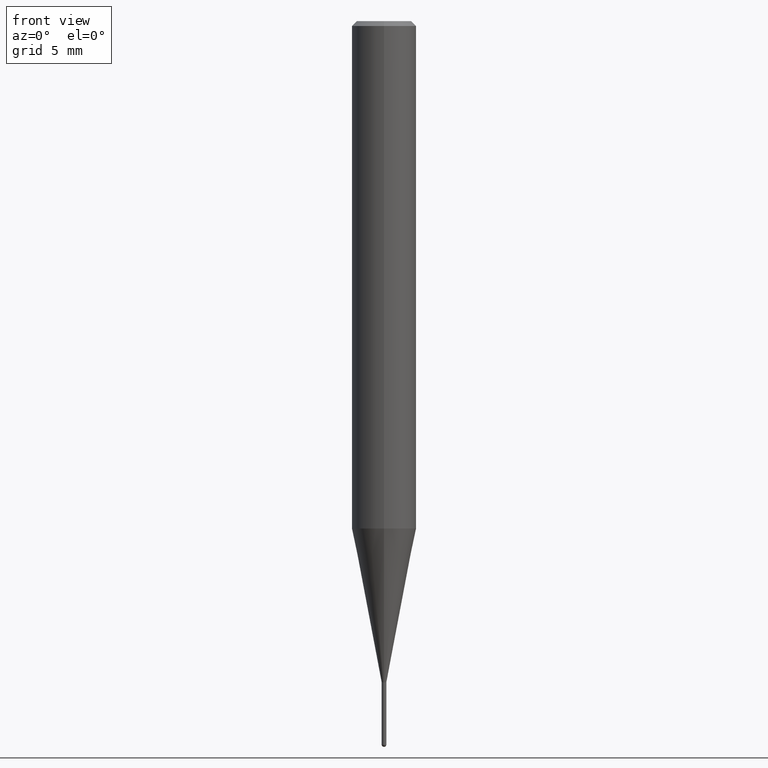
[diagram: clean part render]
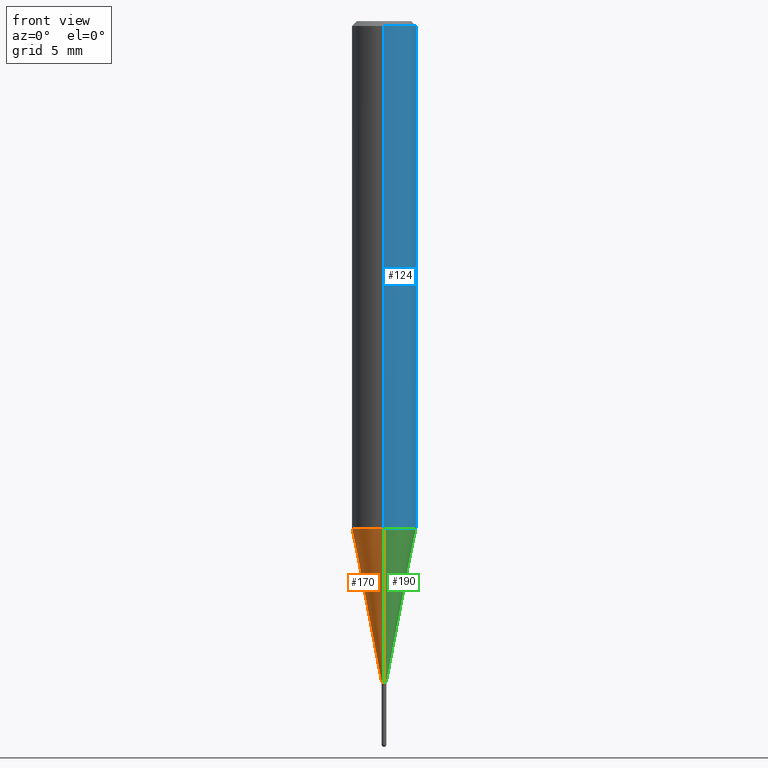
[diagram: same view with three faces highlighted in distinct colors, each labeled with its STEP entity id]
A machine part, front view with three faces highlighted in distinct colors.
Their STEP definitions:

[orange] entity #170 — the highlighted conical surface has half-angle 11 deg.
#94=VERTEX_POINT('',#235);
#126=VERTEX_POINT('',#273);
#132=VERTEX_POINT('',#280);
#136=EDGE_CURVE('',#126,#94,#284,.T.);
#150=EDGE_CURVE('',#186,#132,#298,.T.);
#154=EDGE_CURVE('',#126,#186,#302,.T.);
#170=ADVANCED_FACE('',(#321),#322,.T.);
#186=VERTEX_POINT('',#340);
#214=EDGE_CURVE('',#132,#94,#372,.T.);
#235=CARTESIAN_POINT('',(0.0,0.14495,-41.0));
#273=CARTESIAN_POINT('',(1.77506690986554E-017,-0.14495,-41.0));
#280=CARTESIAN_POINT('',(0.0,1.99995,-31.457));
#284=CIRCLE('',#445,0.14495);
#298=CIRCLE('',#463,1.99995);
#302=LINE('',#470,#471);
#321=FACE_OUTER_BOUND('',#496,.T.);
#322=CONICAL_SURFACE('',#497,1.07245,0.19198911666217);
#340=CARTESIAN_POINT('',(2.44915147732706E-016,-1.99995,-31.457));
#372=LINE('',#556,#557);
#445=AXIS2_PLACEMENT_3D('',#623,#624,#625);
#463=AXIS2_PLACEMENT_3D('',#635,#636,#637);
#470=CARTESIAN_POINT('',(1.31332908415681E-016,-1.07245,-36.2285));
#471=VECTOR('',#639,1.0);
#496=EDGE_LOOP('',(#669,#670,#671,#672));
#497=AXIS2_PLACEMENT_3D('',#673,#674,#675);
#556=CARTESIAN_POINT('',(-1.31332908415681E-016,1.07245,-36.2285));
#557=VECTOR('',#739,1.0);
#623=CARTESIAN_POINT('',(0.0,0.0,-41.0));
#624=DIRECTION('',(0.0,0.0,-1.0));
#625=DIRECTION('',(0.0,1.0,0.0));
#635=CARTESIAN_POINT('',(0.0,0.0,-31.457));
#636=DIRECTION('',(0.0,0.0,-1.0));
#637=DIRECTION('',(0.0,1.0,0.0));
#639=DIRECTION('',(2.33669392942694E-017,-0.190811841056793,0.981626630299177));
#669=ORIENTED_EDGE('',*,*,#214,.T.);
#670=ORIENTED_EDGE('',*,*,#136,.F.);
#671=ORIENTED_EDGE('',*,*,#154,.T.);
#672=ORIENTED_EDGE('',*,*,#150,.T.);
#673=CARTESIAN_POINT('',(0.0,0.0,-36.2285));
#674=DIRECTION('',(-0.0,-0.0,1.0));
#675=DIRECTION('',(0.0,1.0,0.0));
#739=DIRECTION('',(2.33669392942694E-017,-0.190811841056793,-0.981626630299177));

[blue] entity #124 — the highlighted cylindrical surface (edge-blend (fillet) strip) has radius 2 mm, axis along (-0, -0, 1).
#106=VERTEX_POINT('',#248);
#124=ADVANCED_FACE('',(#270),#271,.T.);
#134=VERTEX_POINT('',#282);
#138=EDGE_CURVE('',#146,#106,#286,.T.);
#146=VERTEX_POINT('',#294);
#176=EDGE_CURVE('',#202,#134,#330,.T.);
#196=EDGE_CURVE('',#202,#146,#352,.T.);
#202=VERTEX_POINT('',#358);
#208=EDGE_CURVE('',#106,#134,#365,.T.);
#248=CARTESIAN_POINT('',(2.44921270764475E-016,-2.0,-31.457));
#270=FACE_OUTER_BOUND('',#430,.T.);
#271=CYLINDRICAL_SURFACE('',#431,2.0);
#282=CARTESIAN_POINT('',(2.44921270764475E-016,-2.0,-0.300000000000001));
#286=CIRCLE('',#448,2.0);
#294=CARTESIAN_POINT('',(0.0,2.0,-31.457));
#330=CIRCLE('',#506,2.0);
#352=LINE('',#531,#532);
#358=CARTESIAN_POINT('',(0.0,2.0,-0.300000000000001));
#365=LINE('',#548,#549);
#430=EDGE_LOOP('',(#608,#609,#610,#611));
#431=AXIS2_PLACEMENT_3D('',#612,#613,#614);
#448=AXIS2_PLACEMENT_3D('',#626,#627,#628);
#506=AXIS2_PLACEMENT_3D('',#692,#693,#694);
#531=CARTESIAN_POINT('',(-2.44921270764475E-016,2.0,-15.8785));
#532=VECTOR('',#716,1.0);
#548=CARTESIAN_POINT('',(2.44921270764475E-016,-2.0,-15.8785));
#549=VECTOR('',#729,1.0);
#608=ORIENTED_EDGE('',*,*,#196,.F.);
#609=ORIENTED_EDGE('',*,*,#176,.T.);
#610=ORIENTED_EDGE('',*,*,#208,.F.);
#611=ORIENTED_EDGE('',*,*,#138,.F.);
#612=CARTESIAN_POINT('',(0.0,0.0,-15.8785));
#613=DIRECTION('',(-0.0,-0.0,1.0));
#614=DIRECTION('',(0.0,1.0,0.0));
#626=CARTESIAN_POINT('',(0.0,0.0,-31.457));
#627=DIRECTION('',(0.0,0.0,-1.0));
#628=DIRECTION('',(0.0,1.0,0.0));
#692=CARTESIAN_POINT('',(0.0,0.0,-0.300000000000001));
#693=DIRECTION('',(0.0,0.0,-1.0));
#694=DIRECTION('',(0.0,1.0,0.0));
#716=DIRECTION('',(0.0,0.0,-1.0));
#729=DIRECTION('',(-0.0,-0.0,1.0));

[green] entity #190 — the highlighted conical surface has half-angle 11 deg.
#94=VERTEX_POINT('',#235);
#100=EDGE_CURVE('',#132,#186,#241,.T.);
#126=VERTEX_POINT('',#273);
#132=VERTEX_POINT('',#280);
#154=EDGE_CURVE('',#126,#186,#302,.T.);
#186=VERTEX_POINT('',#340);
#190=ADVANCED_FACE('',(#344),#345,.T.);
#200=EDGE_CURVE('',#94,#126,#356,.T.);
#214=EDGE_CURVE('',#132,#94,#372,.T.);
#235=CARTESIAN_POINT('',(0.0,0.14495,-41.0));
#241=CIRCLE('',#395,1.99995);
#273=CARTESIAN_POINT('',(1.77506690986554E-017,-0.14495,-41.0));
#280=CARTESIAN_POINT('',(0.0,1.99995,-31.457));
#302=LINE('',#470,#471);
#340=CARTESIAN_POINT('',(2.44915147732706E-016,-1.99995,-31.457));
#344=FACE_OUTER_BOUND('',#522,.T.);
#345=CONICAL_SURFACE('',#523,1.07245,0.19198911666217);
#356=CIRCLE('',#537,0.14495);
#372=LINE('',#556,#557);
#395=AXIS2_PLACEMENT_3D('',#563,#564,#565);
#470=CARTESIAN_POINT('',(1.31332908415681E-016,-1.07245,-36.2285));
#471=VECTOR('',#639,1.0);
#522=EDGE_LOOP('',(#701,#702,#703,#704));
#523=AXIS2_PLACEMENT_3D('',#705,#706,#707);
#537=AXIS2_PLACEMENT_3D('',#717,#718,#719);
#556=CARTESIAN_POINT('',(-1.31332908415681E-016,1.07245,-36.2285));
#557=VECTOR('',#739,1.0);
#563=CARTESIAN_POINT('',(0.0,0.0,-31.457));
#564=DIRECTION('',(0.0,0.0,-1.0));
#565=DIRECTION('',(0.0,1.0,0.0));
#639=DIRECTION('',(2.33669392942694E-017,-0.190811841056793,0.981626630299177));
#701=ORIENTED_EDGE('',*,*,#214,.F.);
#702=ORIENTED_EDGE('',*,*,#100,.T.);
#703=ORIENTED_EDGE('',*,*,#154,.F.);
#704=ORIENTED_EDGE('',*,*,#200,.F.);
#705=CARTESIAN_POINT('',(0.0,0.0,-36.2285));
#706=DIRECTION('',(-0.0,-0.0,1.0));
#707=DIRECTION('',(0.0,1.0,0.0));
#717=CARTESIAN_POINT('',(0.0,0.0,-41.0));
#718=DIRECTION('',(0.0,0.0,-1.0));
#719=DIRECTION('',(0.0,1.0,0.0));
#739=DIRECTION('',(2.33669392942694E-017,-0.190811841056793,-0.981626630299177));